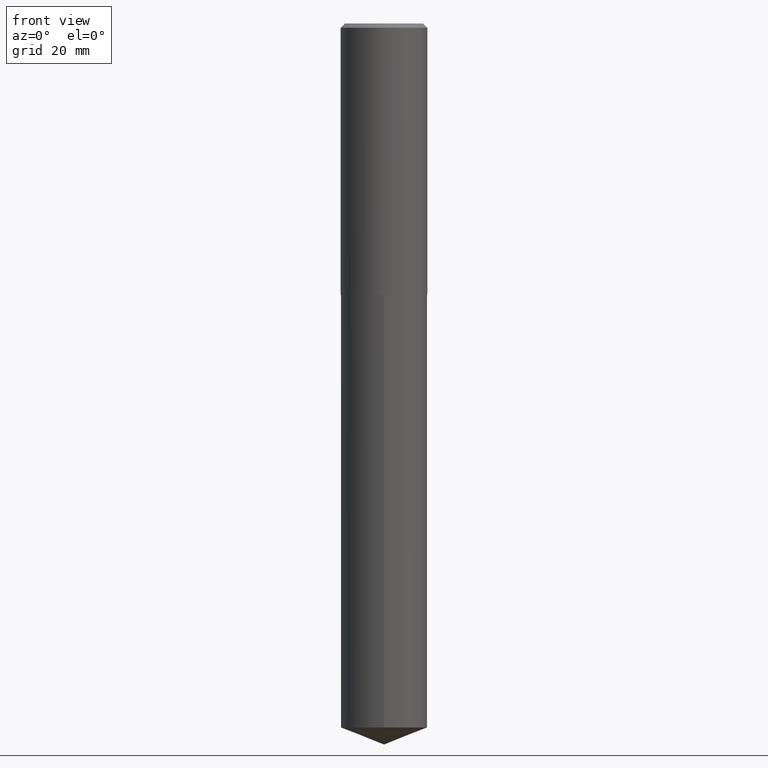
[diagram: clean part render]
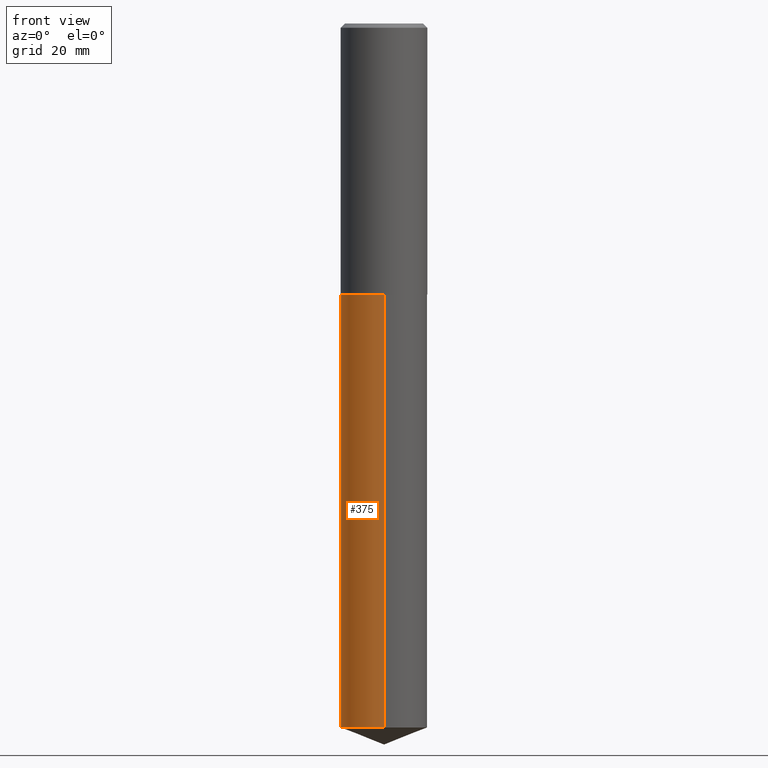
[diagram: same view with one face highlighted and labeled with its STEP entity id]
A machine part, front view. The second image highlights one B-rep face of the part: STEP entity #375.
In plain terms, the highlighted cylindrical surface (partial cylindrical patch) has radius 7.9997 mm, axis along (-0, 0, 1).
Its self-contained STEP definition (entity closure, byte-faithful):
#3 = ORIENTED_EDGE ( 'NONE', *, *, #247, .T. ) ;
#36 = CARTESIAN_POINT ( 'NONE',  ( -2.199284095337241356E-15, -0.3149500000000068911, -1.968299999999998162 ) ) ;
#43 = VECTOR ( 'NONE', #148, 39.37007874015748143 ) ;
#68 = VERTEX_POINT ( 'NONE', #151 ) ;
#72 = AXIS2_PLACEMENT_3D ( 'NONE', #135, #251, #77 ) ;
#73 = LINE ( 'NONE', #36, #289 ) ;
#77 = DIRECTION ( 'NONE',  ( -6.982962677686265922E-15, -1.000000000000000000, 3.469564049740292770E-15 ) ) ;
#84 = CARTESIAN_POINT ( 'NONE',  ( 4.813416251214202584E-29, -6.872282719244960739E-15, -1.968299999999999272 ) ) ;
#93 = CARTESIAN_POINT ( 'NONE',  ( -2.199284095337164048E-15, -0.3149500000000177713, -5.111937895705072954 ) ) ;
#99 = LINE ( 'NONE', #125, #43 ) ;
#103 = EDGE_CURVE ( 'NONE', #141, #350, #99, .T. ) ;
#108 = FACE_OUTER_BOUND ( 'NONE', #235, .T. ) ;
#115 = VERTEX_POINT ( 'NONE', #93 ) ;
#117 = CIRCLE ( 'NONE', #364, 0.3149500000000000077 ) ;
#125 = CARTESIAN_POINT ( 'NONE',  ( 2.237854346276483316E-15, 0.3149499999999931243, -1.968300000000000383 ) ) ;
#130 = CARTESIAN_POINT ( 'NONE',  ( 2.237854346276560230E-15, 0.3149499999999821886, -5.111937895705075618 ) ) ;
#135 = CARTESIAN_POINT ( 'NONE',  ( 1.249904442659412595E-28, -1.785115750298233678E-14, -5.111937895705073842 ) ) ;
#141 = VERTEX_POINT ( 'NONE', #130 ) ;
#148 = DIRECTION ( 'NONE',  ( -2.444819801250085822E-29, 3.492410750849204966E-15, 1.000000000000000000 ) ) ;
#151 = CARTESIAN_POINT ( 'NONE',  ( -2.199284095337241356E-15, -0.3149500000000068911, -1.968299999999998162 ) ) ;
#187 = EDGE_CURVE ( 'NONE', #141, #115, #233, .T. ) ;
#189 = DIRECTION ( 'NONE',  ( -6.982962677686265922E-15, -1.000000000000000000, 3.469564049740292770E-15 ) ) ;
#195 = EDGE_CURVE ( 'NONE', #350, #68, #117, .T. ) ;
#199 = CARTESIAN_POINT ( 'NONE',  ( 2.237854346276560625E-15, 0.3149499999999931243, -1.968300000000000383 ) ) ;
#233 = CIRCLE ( 'NONE', #72, 0.3149500000000000077 ) ;
#235 = EDGE_LOOP ( 'NONE', ( #323, #319, #3, #352 ) ) ;
#247 = EDGE_CURVE ( 'NONE', #115, #68, #73, .T. ) ;
#248 = DIRECTION ( 'NONE',  ( -2.444819801250085822E-29, 3.492410750849204966E-15, 1.000000000000000000 ) ) ;
#251 = DIRECTION ( 'NONE',  ( -2.444819801250086102E-29, 3.492410750849204966E-15, 1.000000000000000000 ) ) ;
#278 = CARTESIAN_POINT ( 'NONE',  ( 4.813416251214202584E-29, -6.872282719244960739E-15, -1.968299999999999272 ) ) ;
#285 = DIRECTION ( 'NONE',  ( -2.444819801250086102E-29, 3.492410750849204966E-15, 1.000000000000000000 ) ) ;
#289 = VECTOR ( 'NONE', #248, 39.37007874015748143 ) ;
#314 = DIRECTION ( 'NONE',  ( -6.982962677686265922E-15, -1.000000000000000000, 3.469564049740292770E-15 ) ) ;
#319 = ORIENTED_EDGE ( 'NONE', *, *, #187, .T. ) ;
#323 = ORIENTED_EDGE ( 'NONE', *, *, #103, .F. ) ;
#337 = DIRECTION ( 'NONE',  ( -2.444819801250086102E-29, 3.492410750849204966E-15, 1.000000000000000000 ) ) ;
#346 = CYLINDRICAL_SURFACE ( 'NONE', #370, 0.3149500000000000077 ) ;
#350 = VERTEX_POINT ( 'NONE', #199 ) ;
#352 = ORIENTED_EDGE ( 'NONE', *, *, #195, .F. ) ;
#364 = AXIS2_PLACEMENT_3D ( 'NONE', #278, #337, #189 ) ;
#370 = AXIS2_PLACEMENT_3D ( 'NONE', #84, #285, #314 ) ;
#375 = ADVANCED_FACE ( 'NONE', ( #108 ), #346, .T. ) ;